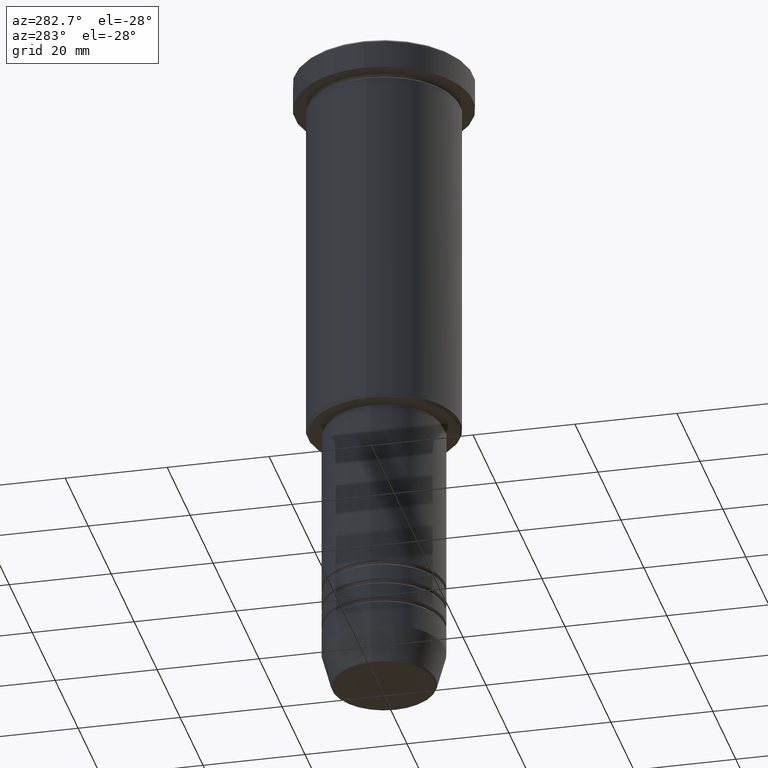
[diagram: clean part render]
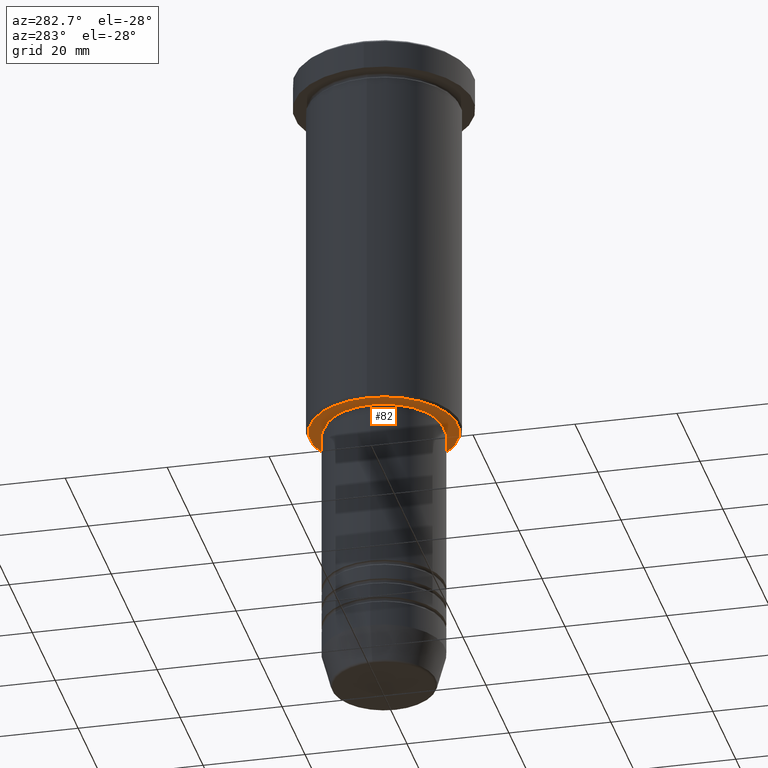
[diagram: same view with one face highlighted and labeled with its STEP entity id]
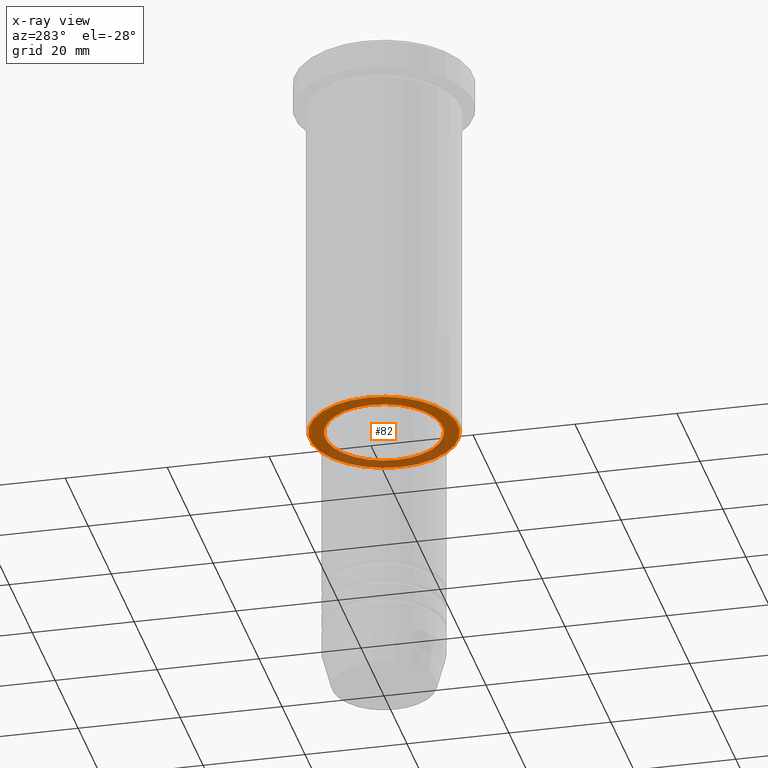
[diagram: x-ray of the same camera — body ghosted, the highlighted face saturated]
A machine part, auxiliary view. The second image highlights one B-rep face of the part: STEP entity #82.
The next image is the same camera in x-ray: the body ghosted, the highlighted face saturated — about 30% of this face is hidden behind the body in this view.
In plain terms, the highlighted planar face has unit normal (0, 0, -1).
Its self-contained STEP definition (entity closure, byte-faithful):
#54 = DIRECTION ( 'NONE',  ( -1.000000000000000000, 0.000000000000000000, 0.000000000000000000 ) ) ;
#82 = ADVANCED_FACE ( 'NONE', ( #1165, #731 ), #268, .T. ) ;
#88 = ORIENTED_EDGE ( 'NONE', *, *, #1118, .T. ) ;
#97 = ORIENTED_EDGE ( 'NONE', *, *, #231, .T. ) ;
#124 = CIRCLE ( 'NONE', #805, 11.50000000000000000 ) ;
#135 = ORIENTED_EDGE ( 'NONE', *, *, #611, .T. ) ;
#185 = CARTESIAN_POINT ( 'NONE',  ( -14.50000000000001066, 1.806354028742346591E-15, -75.99999999999998579 ) ) ;
#190 = CIRCLE ( 'NONE', #267, 11.50000000000000000 ) ;
#216 = CARTESIAN_POINT ( 'NONE',  ( 0.000000000000000000, 0.000000000000000000, -75.99999999999998579 ) ) ;
#231 = EDGE_CURVE ( 'NONE', #591, #1178, #190, .T. ) ;
#234 = DIRECTION ( 'NONE',  ( 1.000000000000000000, 0.000000000000000000, 0.000000000000000000 ) ) ;
#247 = DIRECTION ( 'NONE',  ( -0.000000000000000000, -0.000000000000000000, 1.000000000000000000 ) ) ;
#267 = AXIS2_PLACEMENT_3D ( 'NONE', #216, #706, #490 ) ;
#268 = PLANE ( 'NONE',  #852 ) ;
#280 = ORIENTED_EDGE ( 'NONE', *, *, #775, .T. ) ;
#309 = AXIS2_PLACEMENT_3D ( 'NONE', #1155, #809, #372 ) ;
#351 = CARTESIAN_POINT ( 'NONE',  ( -11.50000000000000000, 1.408343819019456176E-15, -75.99999999999998579 ) ) ;
#372 = DIRECTION ( 'NONE',  ( -1.000000000000000000, 0.000000000000000000, 0.000000000000000000 ) ) ;
#410 = EDGE_LOOP ( 'NONE', ( #135, #97 ) ) ;
#490 = DIRECTION ( 'NONE',  ( 1.000000000000000000, 0.000000000000000000, 0.000000000000000000 ) ) ;
#513 = EDGE_LOOP ( 'NONE', ( #280, #88 ) ) ;
#591 = VERTEX_POINT ( 'NONE', #351 ) ;
#611 = EDGE_CURVE ( 'NONE', #1178, #591, #124, .T. ) ;
#659 = DIRECTION ( 'NONE',  ( -1.000000000000000000, 0.000000000000000000, -0.000000000000000000 ) ) ;
#677 = CARTESIAN_POINT ( 'NONE',  ( 14.50000000000001066, 0.000000000000000000, -75.99999999999998579 ) ) ;
#706 = DIRECTION ( 'NONE',  ( -0.000000000000000000, -0.000000000000000000, 1.000000000000000000 ) ) ;
#731 = FACE_BOUND ( 'NONE', #410, .T. ) ;
#742 = DIRECTION ( 'NONE',  ( 0.000000000000000000, 0.000000000000000000, -1.000000000000000000 ) ) ;
#763 = CARTESIAN_POINT ( 'NONE',  ( 11.50000000000000000, 0.000000000000000000, -75.99999999999998579 ) ) ;
#775 = EDGE_CURVE ( 'NONE', #1062, #977, #892, .T. ) ;
#805 = AXIS2_PLACEMENT_3D ( 'NONE', #966, #247, #234 ) ;
#809 = DIRECTION ( 'NONE',  ( 0.000000000000000000, 0.000000000000000000, -1.000000000000000000 ) ) ;
#852 = AXIS2_PLACEMENT_3D ( 'NONE', #1149, #742, #659 ) ;
#856 = AXIS2_PLACEMENT_3D ( 'NONE', #875, #1059, #54 ) ;
#875 = CARTESIAN_POINT ( 'NONE',  ( 0.000000000000000000, 0.000000000000000000, -75.99999999999998579 ) ) ;
#892 = CIRCLE ( 'NONE', #856, 14.50000000000001066 ) ;
#917 = CIRCLE ( 'NONE', #309, 14.50000000000001066 ) ;
#966 = CARTESIAN_POINT ( 'NONE',  ( 0.000000000000000000, 0.000000000000000000, -75.99999999999998579 ) ) ;
#977 = VERTEX_POINT ( 'NONE', #185 ) ;
#1059 = DIRECTION ( 'NONE',  ( 0.000000000000000000, 0.000000000000000000, -1.000000000000000000 ) ) ;
#1062 = VERTEX_POINT ( 'NONE', #677 ) ;
#1118 = EDGE_CURVE ( 'NONE', #977, #1062, #917, .T. ) ;
#1149 = CARTESIAN_POINT ( 'NONE',  ( 0.000000000000000000, 15.00000000000000000, -75.99999999999998579 ) ) ;
#1155 = CARTESIAN_POINT ( 'NONE',  ( 0.000000000000000000, 0.000000000000000000, -75.99999999999998579 ) ) ;
#1165 = FACE_OUTER_BOUND ( 'NONE', #513, .T. ) ;
#1178 = VERTEX_POINT ( 'NONE', #763 ) ;